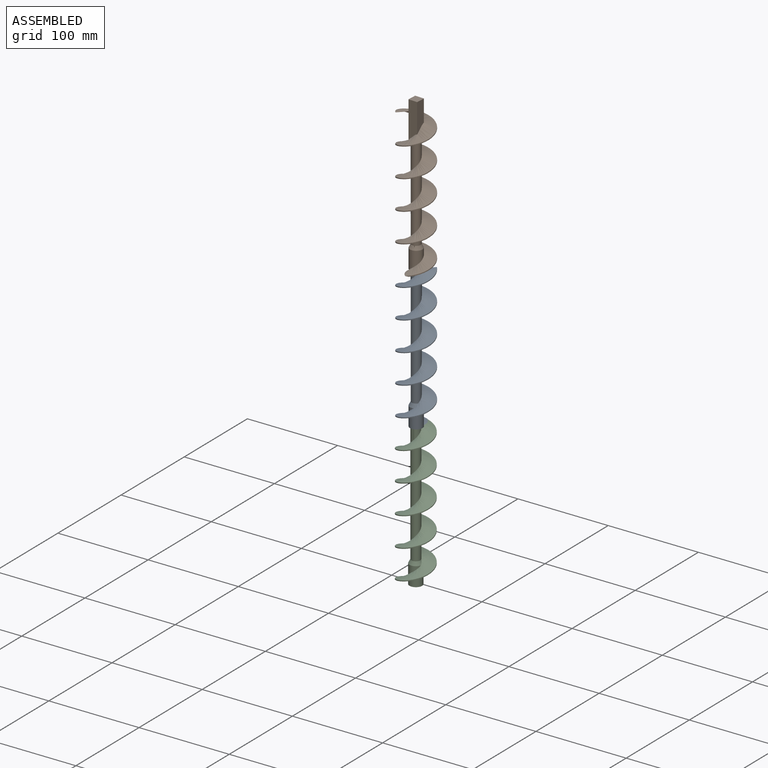
[diagram: assembled view]
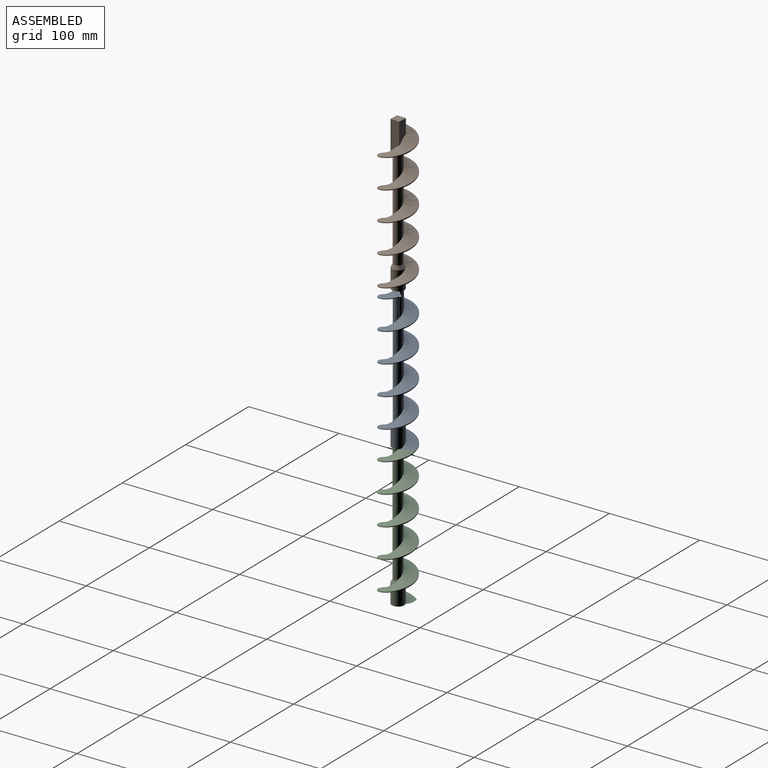
[diagram: assembled view, second angle]
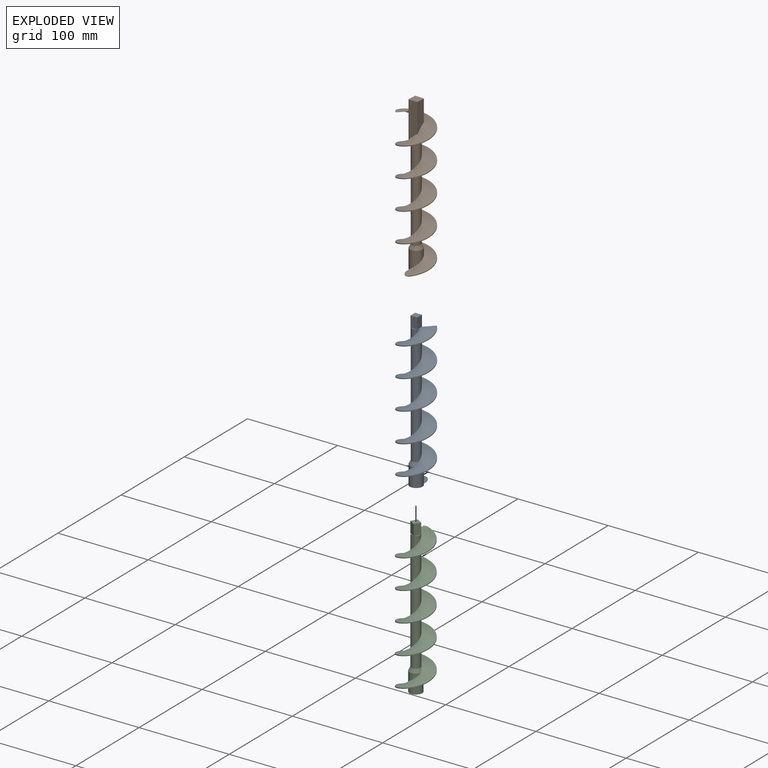
[diagram: exploded view]
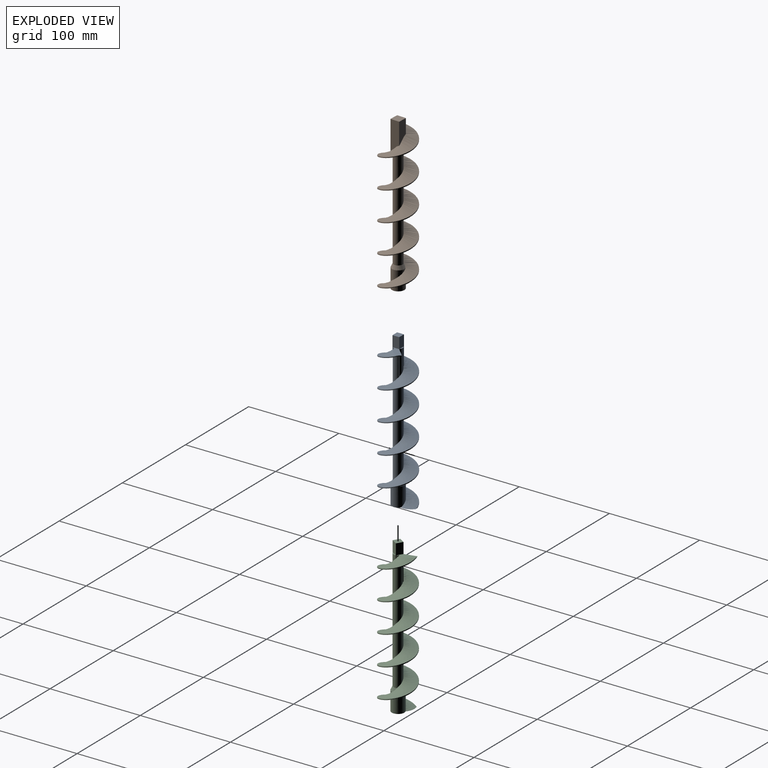
[diagram: exploded view, second angle]
ASSEMBLY  parts=3 mates=2
PART A: 26 faces, bbox 38x38x176 mm
  f0: plane 25.91x14mm, normal (0,0,-1), area 160.1mm2, adj f2,f3,f4,f19,f20,f21,f22,f25
  f1: cylinder r=5mm len=132.67mm, axis (0,0,-1), area 3147.1mm2, adj f2,f3,f17,f23
  f2: bspline ~170.06x38mm, area 5725.5mm2, adj f0,f1,f4,f5,f6,f7,f9,f11
  f3: bspline ~160.61x38mm, area 5536.6mm2, adj f0,f1,f4,f9,f17,f20,f23
  f4: cylinder r=19mm len=158mm, axis (0,0,1), area 658.3mm2, adj f0,f2,f3,f9
  f5: cylinder r=5mm len=27.34mm, axis (0,0,-1), area 170.5mm2, adj f2,f8,f16
  f6: cylinder r=5mm len=19.18mm, axis (0,0,-1), area 111.5mm2, adj f2,f12,f15
  f7: cylinder r=5mm len=11.01mm, axis (0,0,-1), area 52.4mm2, adj f2,f10,f14
  f8: plane 6.61x1.41mm, normal (0,0,1), area 5.7mm2, adj f5,f16
  f9: plane 17.18x11.65mm, normal (0,0,1), area 89.8mm2, adj f2,f3,f4,f11,f13
  f10: plane 6.61x1.41mm, normal (0,0,1), area 5.7mm2, adj f7,f14
  f11: cylinder r=5mm len=2.84mm, axis (0,0,-1), area 3.9mm2, adj f2,f9,f13
  f12: plane 6.61x1.41mm, normal (0,0,1), area 5.7mm2, adj f6,f15
  f13: plane 15.27x7.5mm, normal (-1,-0.05,0), area 91.4mm2, adj f2,f9,f11,f14,f16,f18
  f14: plane 23.44x7.5mm, normal (-0.05,1,0), area 96.5mm2, adj f2,f7,f10,f13,f15,f18
  f15: plane 31.61x7.5mm, normal (1,0.05,0), area 103.7mm2, adj f2,f6,f12,f14,f16,f18
  f16: plane 39.77x7.5mm, normal (0.05,-1,0), area 110.9mm2, adj f2,f5,f8,f13,f15,f17,f18
  f17: plane 28.01x0.46mm, normal (-1,-0.05,0), area 12.3mm2, adj f1,f2,f3,f16
  f18: plane 7.85x7.85mm, normal (0,0,1), area 56.2mm2, adj f13,f14,f15,f16
  f19: plane 12x7.21mm, normal (-0.48,-0.88,0), area 98.4mm2, adj f0,f22,f24,f25
  f20: cylinder r=7mm len=21mm, axis (0,0,-1), area 798.4mm2, adj f0,f2,f3,f23
  f21: plane 12x7.21mm, normal (0.48,0.88,0), area 98.4mm2, adj f0,f22,f24,f25
  f22: plane 12x7.21mm, normal (0.88,-0.48,0), area 98.4mm2, adj f0,f19,f21,f24
  f23: cone r=7mm half-angle=26.6deg, axis (0,0,-1), area 144.3mm2, adj f1,f2,f3,f20
  f24: plane 11.12x11.12mm, normal (0,0,-1), area 67.2mm2, adj f19,f21,f22,f25
  f25: plane 12x7.21mm, normal (-0.88,0.48,0), area 98.4mm2, adj f0,f19,f21,f24
PART B: 20 faces, bbox 39.5x39.5x177.4 mm
  f0: plane 27.05x15.14mm, normal (0,0,-1), area 160.1mm2, adj f3,f4,f5,f13,f14,f15,f16,f17
  f1: cylinder r=5mm len=140.67mm, axis (0,0,-1), area 3033mm2, adj f2,f3,f4,f11,f15,f18,f19
  f2: plane 12x0.77mm, normal (0.96,0.28,0), area 8.9mm2, adj f1,f15,f18,f19
  f3: bspline ~170.06x38mm, area 5691.7mm2, adj f0,f1,f5,f6,f7,f8,f9,f10
  f4: bspline ~160.61x38mm, area 5532.4mm2, adj f0,f1,f5,f6,f10,f11,f17,f18
  f5: cylinder r=19mm len=158mm, axis (0,0,1), area 658.3mm2, adj f0,f3,f4,f6
  f6: plane 16.17x12.14mm, normal (0,0,1), area 81mm2, adj f3,f4,f5,f7,f10
  f7: plane 16.91x10.9mm, normal (-1,0,0), area 129.4mm2, adj f3,f6,f8,f10,f12
  f8: plane 24.18x10mm, normal (0,1,0), area 197.2mm2, adj f3,f7,f9,f12
  f9: plane 32.35x10mm, normal (1,0,0), area 278.8mm2, adj f3,f8,f10,f12
  f10: plane 40.52x10.01mm, normal (0,-1,0), area 360.4mm2, adj f3,f4,f6,f7,f9,f11,f12
  f11: plane 33.08x6.32mm, normal (-1,0,0), area 139.4mm2, adj f1,f3,f4,f10
  f12: plane 10x10mm, normal (0,0,1), area 100mm2, adj f7,f8,f9,f10
  f13: plane 13x7.21mm, normal (0.48,0.88,0), area 106.6mm2, adj f0,f14,f15,f19
  f14: plane 13x7.21mm, normal (0.88,-0.48,0), area 106.6mm2, adj f0,f13,f16,f19
  f15: plane 25.11x7.31mm, normal (-0.88,0.48,0), area 120.5mm2, adj f0,f1,f2,f13,f16,f18,f19
  f16: plane 13x7.21mm, normal (-0.48,-0.88,0), area 106.6mm2, adj f0,f14,f15,f19
  f17: cylinder r=7mm len=21mm, axis (0,0,-1), area 798.4mm2, adj f0,f3,f4,f18
  f18: cone r=7mm half-angle=26.6deg, axis (0,0,-1), area 143.5mm2, adj f1,f2,f3,f4,f15,f17
  f19: plane 11.12x11.12mm, normal (0,0,-1), area 66.9mm2, adj f1,f2,f13,f14,f15,f16
PART C: same geometry as A
PLACE A rot(axis=(0,0,1),177.3deg) t=(-29.47,95.34,-367.16)mm
PLACE B rot(axis=(0,0,-1),2.7deg) t=(-29.46,95.31,-209.16)mm
PLACE C rot(axis=(0,0,-1),123.9deg) t=(-29.65,95.04,-525.16)mm
MATE fastened A.f19 <-> C.f15  axis (0.52,0.86,0) through (-31.6,91.83,-47.16)mm
MATE fastened B.f19 <-> A.f1  axis (0,0,-1) through (-29.47,95.34,123.84)mm
